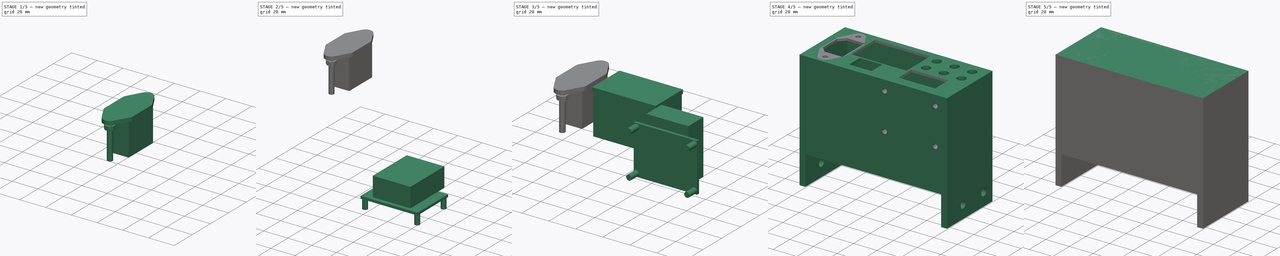
[diagram: build sequence overview — one tinted view per stage of 5, left to right]
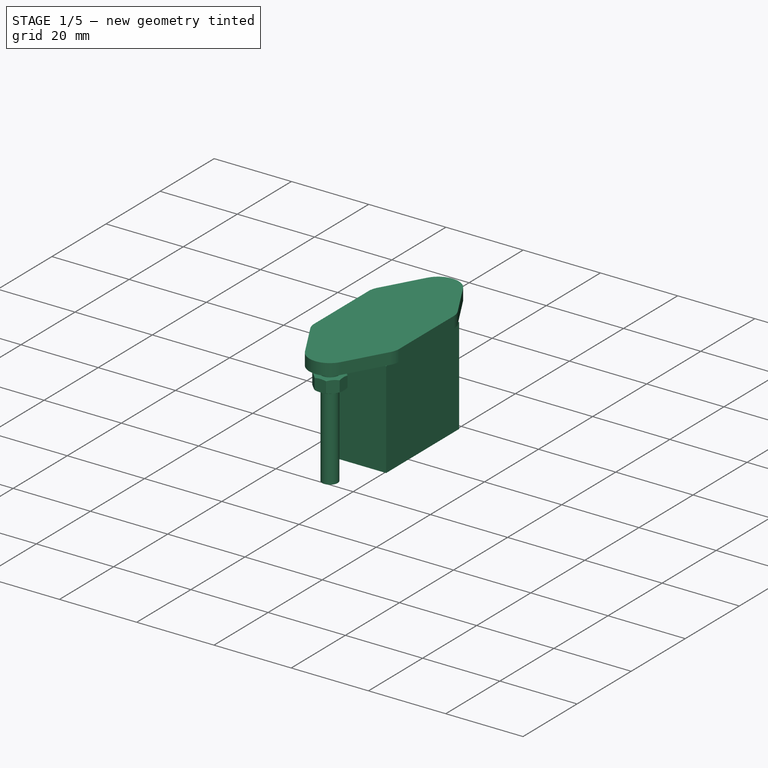
[diagram: stage 1 of 5 — iso view after this stage's code; geometry added in this stage tinted green]
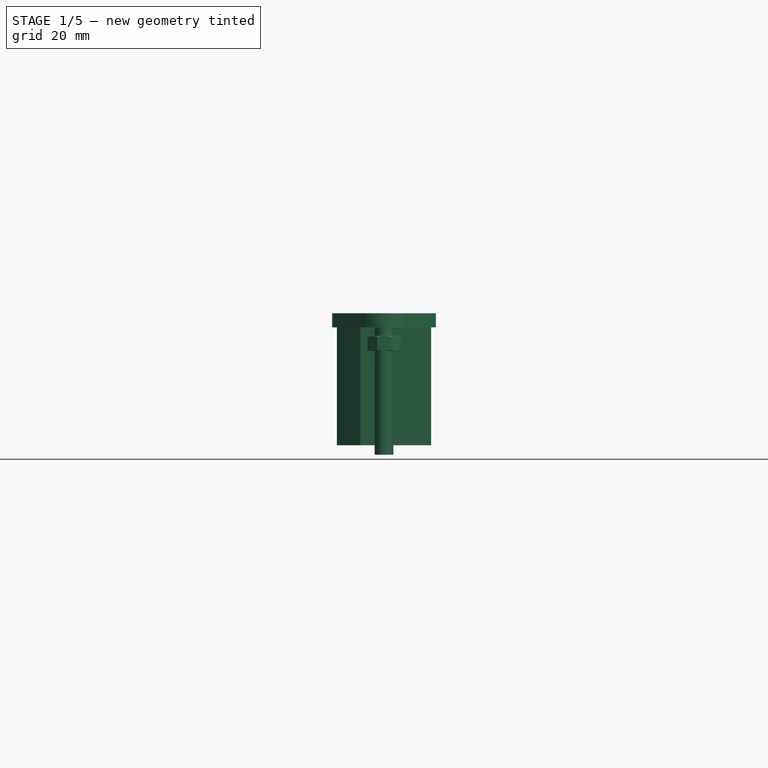
[diagram: stage 1 of 5 — front view after this stage's code; geometry added in this stage tinted green]
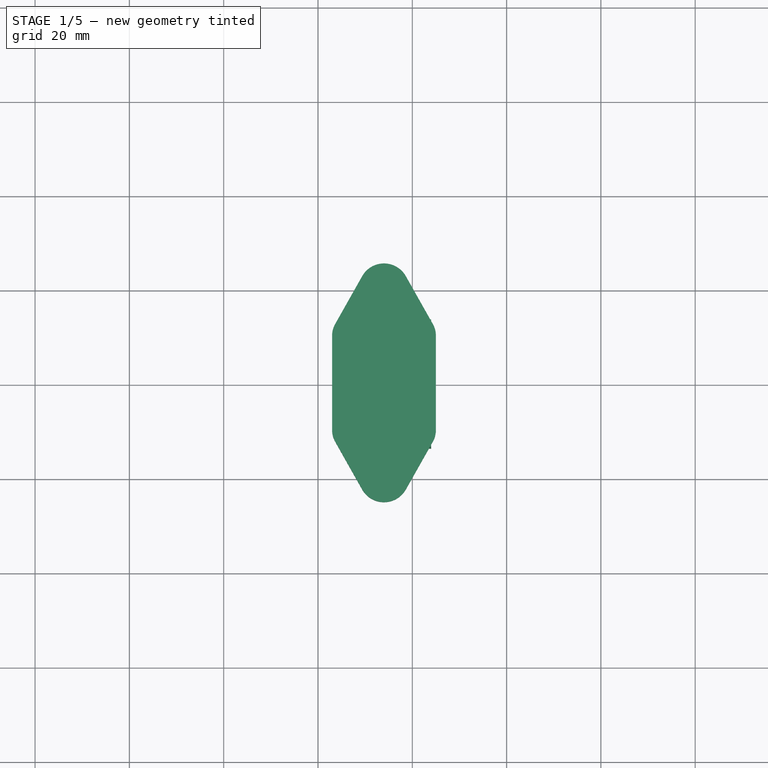
[diagram: stage 1 of 5 — top view after this stage's code; geometry added in this stage tinted green]
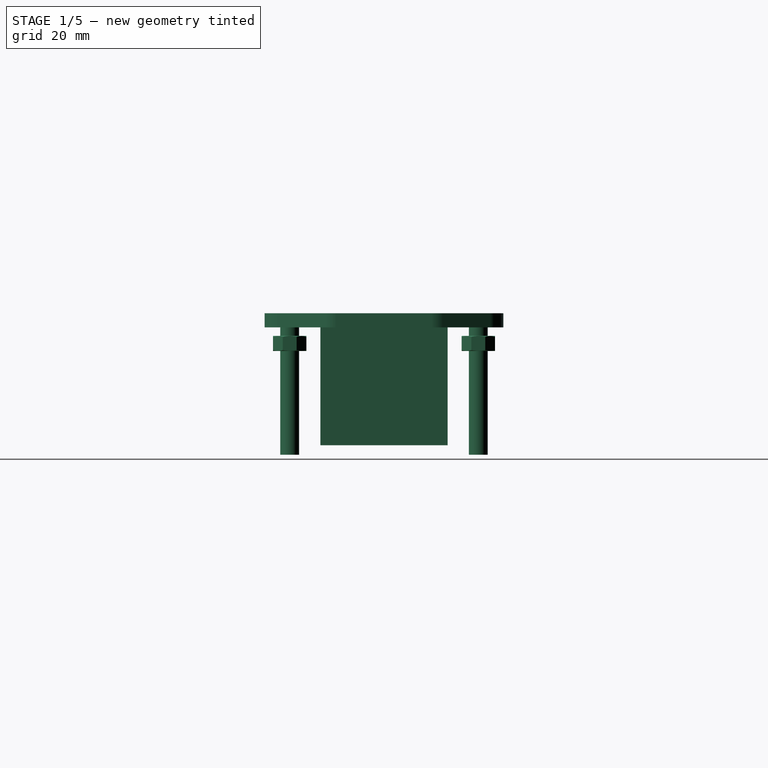
[diagram: stage 1 of 5 — right view after this stage's code; geometry added in this stage tinted green]
FCSTD DOCUMENT  (FreeCAD 0.16R)
Label: usbpower
License: All rights reserved
LicenseURL: http://en.wikipedia.org/wiki/All_rights_reserved
objects: Sketcher::SketchObject×13, PartDesign::Pad×9, Part::MultiFuse×4, PartDesign::Pocket×4, Part::Feature×2, Part::Cut×1
note: 46 computed .brp shape members not serialized (recipe doc carries the construction recipe); baked Part::Feature solids carry a one-line shape summary decoded from their .brp

FEATURE [Sketcher::SketchObject] Sketch003
  sketch-geometry (14):
    g0: LineSegment StartX=-10.2695 StartY=11 StartZ=0 EndX=10.2695 EndY=11 EndZ=0
    g1: LineSegment StartX=10.2695 StartY=-11 StartZ=0 EndX=-10.2695 EndY=-11 EndZ=0
    g2: ArcOfCircle CenterX=-10 CenterY=6.00727 CenterZ=0 NormalX=0 NormalY=0 NormalZ=1 Radius=5 StartAngle=1.62473 EndAngle=2.08479
    g3: ArcOfCircle CenterX=10 CenterY=6.00727 CenterZ=0 NormalX=0 NormalY=0 NormalZ=1 Radius=5 StartAngle=1.0568 EndAngle=1.51687
    g4: ArcOfCircle CenterX=-10 CenterY=-6.00727 CenterZ=0 NormalX=0 NormalY=0 NormalZ=1 Radius=5 StartAngle=4.1984 EndAngle=4.65846
    g5: ArcOfCircle CenterX=10 CenterY=-6.00727 CenterZ=0 NormalX=0 NormalY=0 NormalZ=1 Radius=5 StartAngle=4.76632 EndAngle=5.22638
    g6: Circle CenterX=-20 CenterY=0 CenterZ=0 NormalX=0 NormalY=0 NormalZ=1 Radius=2
    g7: Circle CenterX=20 CenterY=0 CenterZ=0 NormalX=0 NormalY=0 NormalZ=1 Radius=2
    g8: ArcOfCircle CenterX=-20 CenterY=0 CenterZ=0 NormalX=0 NormalY=0 NormalZ=1 Radius=5.31448 StartAngle=2.08479 EndAngle=4.1984
    g9: ArcOfCircle CenterX=20 CenterY=0 CenterZ=0 NormalX=0 NormalY=0 NormalZ=1 Radius=5.31448 StartAngle=5.22638 EndAngle=7.33999
    g10: LineSegment StartX=-22.6129 StartY=4.62779 StartZ=0 EndX=-12.4583 EndY=10.3612 EndZ=0
    g11: LineSegment StartX=22.6129 StartY=4.62779 StartZ=0 EndX=12.4583 EndY=10.3612 EndZ=0
    g12: LineSegment StartX=-22.6129 StartY=-4.62779 StartZ=0 EndX=-12.4583 EndY=-10.3612 EndZ=0
    g13: LineSegment StartX=12.4583 StartY=-10.3612 StartZ=0 EndX=22.6129 EndY=-4.62779 EndZ=0
  constraints (38):
    c: Symmetric(g0,g0,g-2)
    c: Symmetric(g0,g1,g-1)
    c: Equal(g0,g1)
    c: DistanceY(g1,g0) = 22
    c: Coincident(g2,g0)
    c: Coincident(g3,g0)
    c: Coincident(g4,g1)
    c: Coincident(g5,g1)
    c: Symmetric(g6,g7,g-2)
    c: Radius(g7) = 2
    c: Equal(g6,g7)
    c: DistanceX(g6,g7) = 40
    c: Coincident(g8,g6)
    c: Coincident(g9,g7)
    c: Symmetric(g8,g9,g-2)
    c: Symmetric(g8,g8,g-1)
    c: Symmetric(g9,g9,g-1)
    c: Coincident(g10,g8)
    c: Tangent(g10,g8)
    c: Tangent(g10,g2)
    c: Coincident(g11,g9)
    c: Tangent(g11,g9)
    c: Tangent(g11,g3)
    c: Coincident(g12,g8)
    c: Tangent(g8,g12)
    c: Tangent(g12,g4)
    c: Coincident(g13,g9)
    c: Tangent(g9,g13)
    c: Tangent(g13,g5)
    c: Symmetric(g2,g4,g-1)
    c: Symmetric(g3,g5,g-1)
    c: Symmetric(g2,g3,g-2)
    c: DistanceX(g2,g3) = 20
    c: Coincident(g2,g10)
    c: Coincident(g4,g12)
    c: Coincident(g5,g13)
    c: Coincident(g3,g11)
    c: Radius(g3) = 5
FEATURE [PartDesign::Pad] Pad003
  Length = 3
  Length2 = 100
  Sketch = -> Sketch003
  Type = 0
FEATURE [Sketcher::SketchObject] Sketch004
  sketch-geometry (6):
    g0: LineSegment StartX=-8.5 StartY=10 StartZ=0 EndX=8.5 EndY=10 EndZ=0
    g1: LineSegment StartX=8.5 StartY=10 StartZ=0 EndX=13.5 EndY=5 EndZ=0
    g2: LineSegment StartX=13.5 StartY=5 StartZ=0 EndX=13.5 EndY=-10 EndZ=0
    g3: LineSegment StartX=13.5 StartY=-10 StartZ=0 EndX=-13.5 EndY=-10 EndZ=0
    g4: LineSegment StartX=-13.5 StartY=-10 StartZ=0 EndX=-13.5 EndY=5 EndZ=0
    g5: LineSegment StartX=-13.5 StartY=5 StartZ=0 EndX=-8.5 EndY=10 EndZ=0
  constraints (17):
    c: Horizontal(g0)
    c: Coincident(g0,g1)
    c: Coincident(g1,g2)
    c: Coincident(g2,g3)
    c: Horizontal(g3)
    c: Coincident(g3,g4)
    c: Vertical(g4)
    c: Coincident(g4,g5)
    c: Coincident(g5,g0)
    c: Symmetric(g0,g0,g-2)
    c: Symmetric(g4,g1,g-2)
    c: Vertical(g2)
    c: DistanceY(g-1,g0) = 10
    c: DistanceY(g2,g-1) = 10
    c: DistanceX(g3,g2) = 27
    c: DistanceY(g2,g1) = 15
    c: Angle(g5,g-2) = 0.785398
FEATURE [PartDesign::Pad] Pad004
  Length = 25
  Length2 = 100
  Reversed = true
  Sketch = -> Sketch004
  Type = 0
FEATURE [Sketcher::SketchObject] Sketch005
  Placement = pos=(0,0,3) rot=(0,0,1;0rad)
  Support = -> Pad003 [Face16]
  sketch-geometry (2):
    g0: Circle CenterX=-20 CenterY=0 CenterZ=0 NormalX=0 NormalY=0 NormalZ=1 Radius=2
    g1: Circle CenterX=20 CenterY=0 CenterZ=0 NormalX=0 NormalY=0 NormalZ=1 Radius=2
  constraints (6):
    c: PointOnObject(g0,g-1)
    c: PointOnObject(g1,g-1)
    c: Symmetric(g0,g1,g-2)
    c: Radius(g1) = 2
    c: Equal(g0,g1)
    c: DistanceX(g0,g1) = 40
FEATURE [PartDesign::Pad] Pad005
  Length = 30
  Length2 = 100
  Reversed = true
  Sketch = -> Sketch005
  Type = 0
FEATURE [Part::Feature] Part__Feature  label="M4_1"
  Placement = pos=(-20,0,-5) rot=(0,0,1;0rad)
  shape: bbox 7.66 x 7.66 x 3.203 mm, 15 faces (baked)
FEATURE [Part::Feature] Part__Feature001  label="M4_2"
  Placement = pos=(20,0,-5) rot=(0,0,1;0rad)
  shape: bbox 7.66 x 7.66 x 3.203 mm, 15 faces (baked)
FEATURE [Part::MultiFuse] Fusion004  label="C14"
  Placement = pos=(-46,0,100) rot=(0,0,1;1.5708rad)
  Shapes = -> [Pad003,Pad005,Pad004,Part__Feature,Part__Feature001]
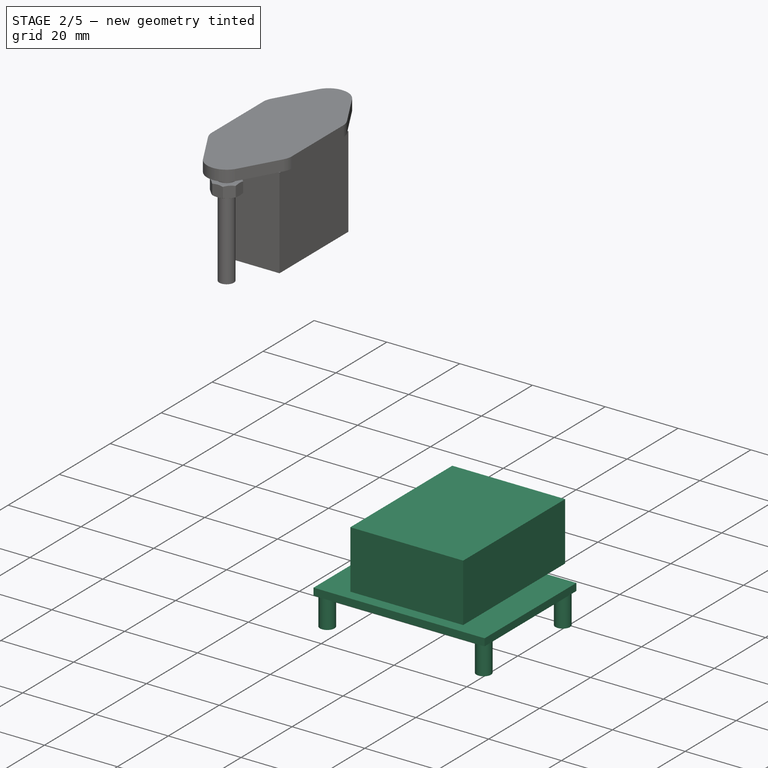
[diagram: stage 2 of 5 — iso view after this stage's code; geometry added in this stage tinted green]
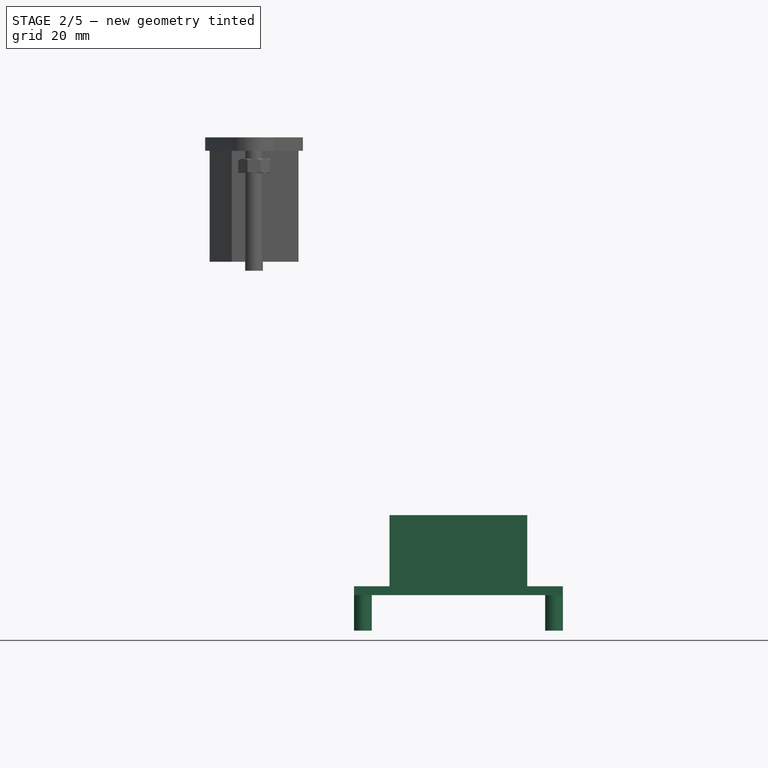
[diagram: stage 2 of 5 — front view after this stage's code; geometry added in this stage tinted green]
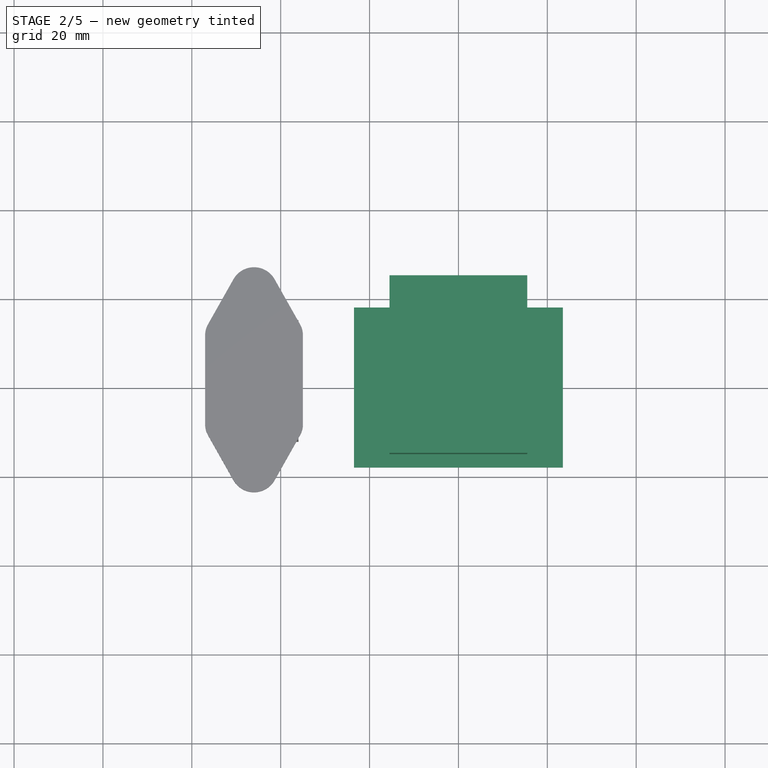
[diagram: stage 2 of 5 — top view after this stage's code; geometry added in this stage tinted green]
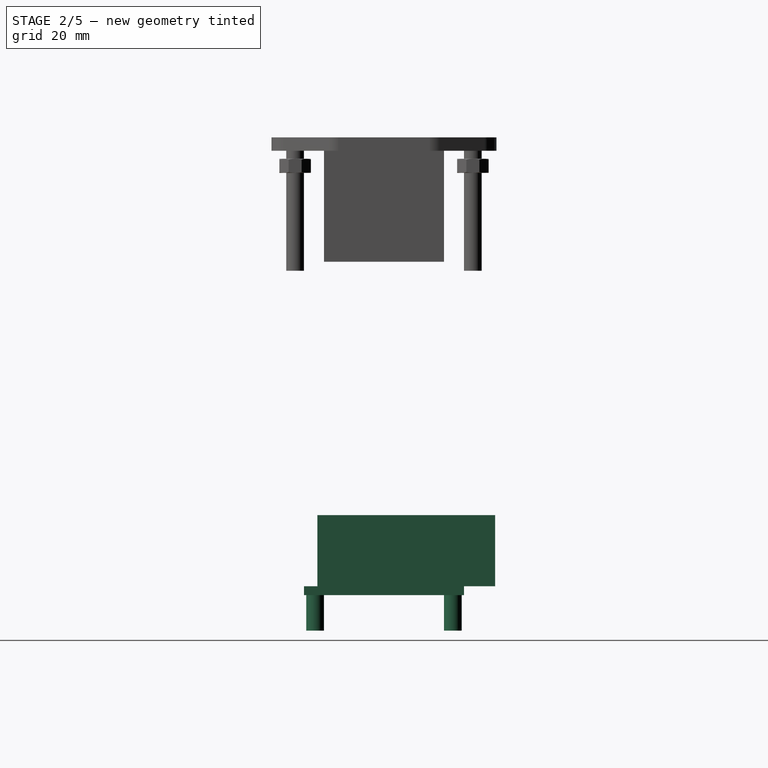
[diagram: stage 2 of 5 — right view after this stage's code; geometry added in this stage tinted green]
FEATURE [Sketcher::SketchObject] Sketch
  sketch-geometry (4):
    g0: LineSegment StartX=-23.5 StartY=18 StartZ=0 EndX=23.5 EndY=18 EndZ=0
    g1: LineSegment StartX=23.5 StartY=18 StartZ=0 EndX=23.5 EndY=-18 EndZ=0
    g2: LineSegment StartX=23.5 StartY=-18 StartZ=0 EndX=-23.5 EndY=-18 EndZ=0
    g3: LineSegment StartX=-23.5 StartY=-18 StartZ=0 EndX=-23.5 EndY=18 EndZ=0
  constraints (12):
    c: Coincident(g0,g1)
    c: Coincident(g1,g2)
    c: Coincident(g2,g3)
    c: Coincident(g3,g0)
    c: Horizontal(g0)
    c: Horizontal(g2)
    c: Vertical(g1)
    c: Vertical(g3)
    c: Symmetric(g0,g0,g-2)
    c: Symmetric(g1,g0,g-1)
    c: DistanceX(g0,g0) = 47
    c: DistanceY(g1,g1) = 36
FEATURE [PartDesign::Pad] Pad
  Length = 2
  Length2 = 100
  Sketch = -> Sketch
  Type = 0
FEATURE [Sketcher::SketchObject] Sketch001
  Placement = pos=(0,0,2) rot=(0,0,1;0rad)
  Support = -> Pad [Face6]
  sketch-geometry (4):
    g0: LineSegment StartX=-15.5 StartY=25 StartZ=0 EndX=15.5 EndY=25 EndZ=0
    g1: LineSegment StartX=15.5 StartY=25 StartZ=0 EndX=15.5 EndY=-15 EndZ=0
    g2: LineSegment StartX=15.5 StartY=-15 StartZ=0 EndX=-15.5 EndY=-15 EndZ=0
    g3: LineSegment StartX=-15.5 StartY=-15 StartZ=0 EndX=-15.5 EndY=25 EndZ=0
  constraints (12):
    c: Coincident(g0,g1)
    c: Coincident(g1,g2)
    c: Coincident(g2,g3)
    c: Coincident(g3,g0)
    c: Horizontal(g0)
    c: Horizontal(g2)
    c: Vertical(g1)
    c: Vertical(g3)
    c: Symmetric(g0,g0,g-2)
    c: DistanceY(g1,g1) = 40
    c: DistanceX(g0,g0) = 31
    c: DistanceY(g-1,g0) = 25
FEATURE [PartDesign::Pad] Pad001
  Length = 16
  Length2 = 100
  Sketch = -> Sketch001
  Type = 0
FEATURE [Sketcher::SketchObject] Sketch002
  Placement = pos=(0,0,2) rot=(0,0,1;0rad)
  Support = -> Pad [Face6]
  sketch-geometry (4):
    g0: Circle CenterX=-21.5 CenterY=15.5 CenterZ=0 NormalX=0 NormalY=0 NormalZ=1 Radius=2
    g1: Circle CenterX=21.5 CenterY=15.5 CenterZ=0 NormalX=0 NormalY=0 NormalZ=1 Radius=2
    g2: Circle CenterX=-21.5 CenterY=-15.5 CenterZ=0 NormalX=0 NormalY=0 NormalZ=1 Radius=2
    g3: Circle CenterX=21.5 CenterY=-15.5 CenterZ=0 NormalX=0 NormalY=0 NormalZ=1 Radius=2
  constraints (9):
    c: Radius(g0) = 2
    c: Equal(g0,g1)
    c: Equal(g0,g2)
    c: Equal(g0,g3)
    c: Symmetric(g0,g1,g-2)
    c: Symmetric(g2,g3,g-2)
    c: Symmetric(g1,g3,g-1)
    c: DistanceY(g3,g1) = 31
    c: DistanceX(g2,g3) = 43
FEATURE [PartDesign::Pad] Pad002
  Length = 10
  Length2 = 100
  Reversed = true
  Sketch = -> Sketch002
  Type = 0
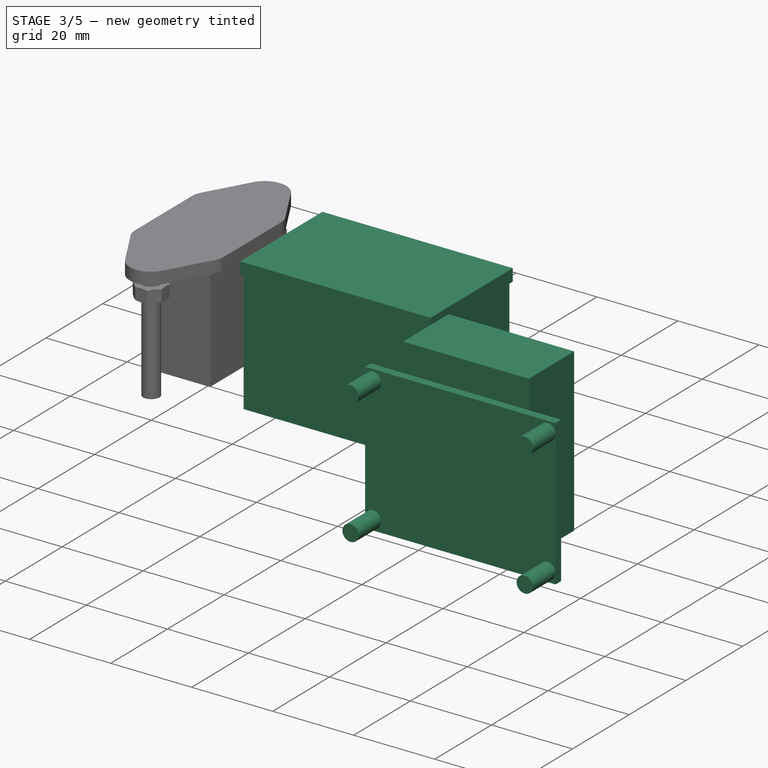
[diagram: stage 3 of 5 — iso view after this stage's code; geometry added in this stage tinted green]
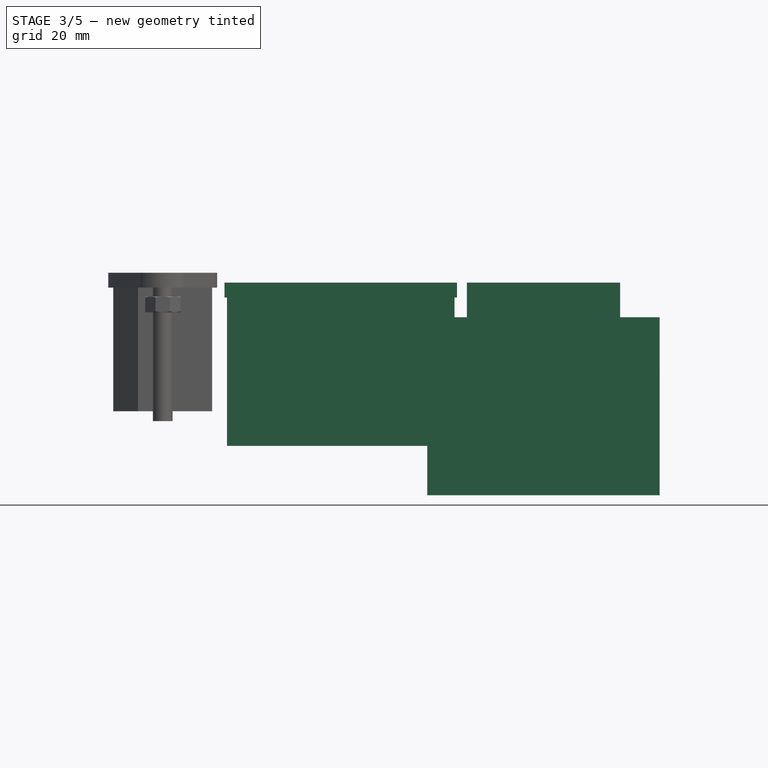
[diagram: stage 3 of 5 — front view after this stage's code; geometry added in this stage tinted green]
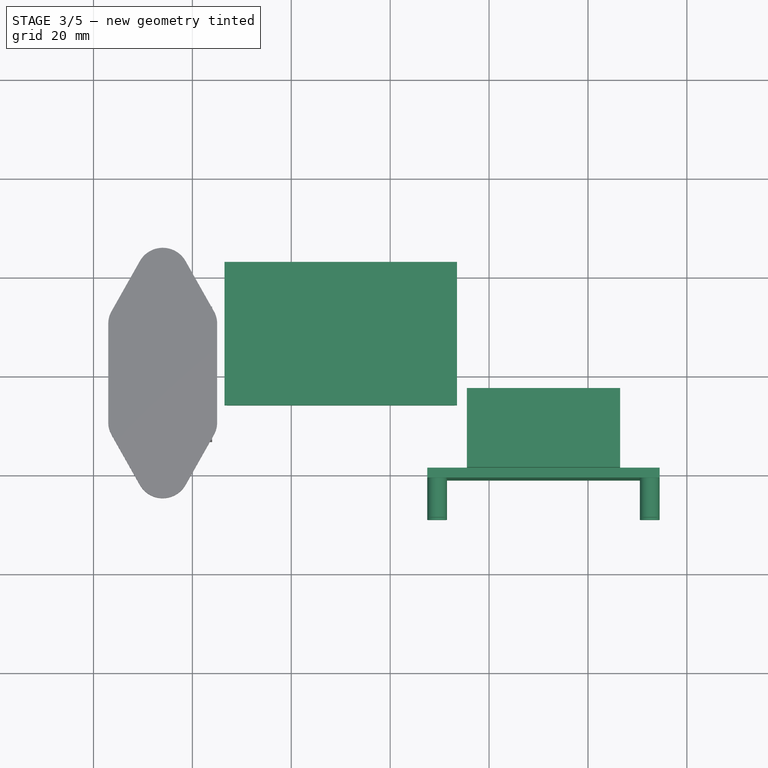
[diagram: stage 3 of 5 — top view after this stage's code; geometry added in this stage tinted green]
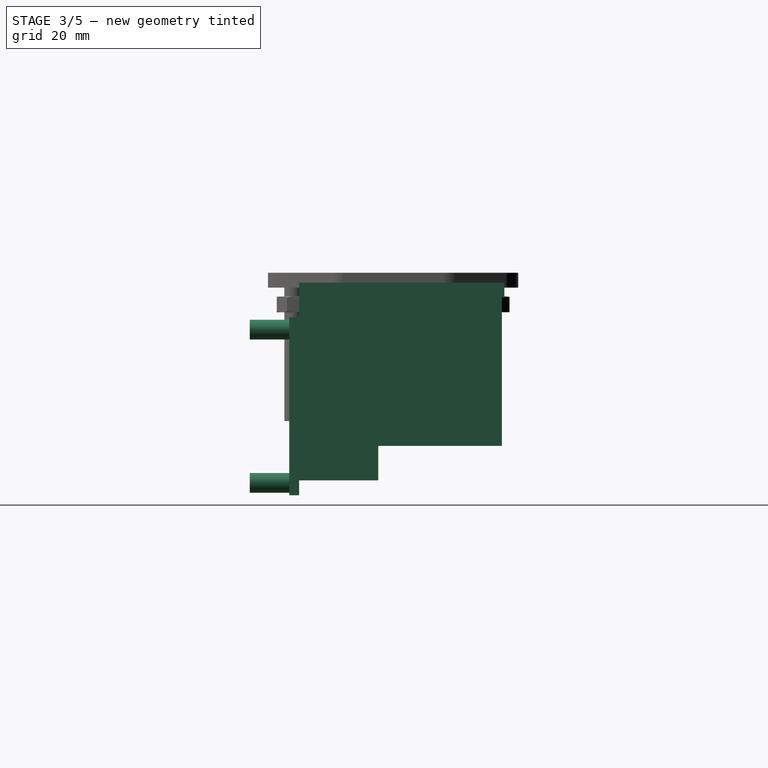
[diagram: stage 3 of 5 — right view after this stage's code; geometry added in this stage tinted green]
FEATURE [Sketcher::SketchObject] Sketch006
  sketch-geometry (4):
    g0: LineSegment StartX=-23.5 StartY=14.5 StartZ=0 EndX=23.5 EndY=14.5 EndZ=0
    g1: LineSegment StartX=23.5 StartY=14.5 StartZ=0 EndX=23.5 EndY=-14.5 EndZ=0
    g2: LineSegment StartX=23.5 StartY=-14.5 StartZ=0 EndX=-23.5 EndY=-14.5 EndZ=0
    g3: LineSegment StartX=-23.5 StartY=-14.5 StartZ=0 EndX=-23.5 EndY=14.5 EndZ=0
  constraints (12):
    c: Coincident(g0,g1)
    c: Coincident(g1,g2)
    c: Coincident(g2,g3)
    c: Coincident(g3,g0)
    c: Horizontal(g0)
    c: Horizontal(g2)
    c: Vertical(g1)
    c: Vertical(g3)
    c: Symmetric(g0,g0,g-2)
    c: Symmetric(g0,g1,g-1)
    c: DistanceX(g0,g0) = 47
    c: DistanceY(g1,g1) = 29
FEATURE [PartDesign::Pad] Pad006
  Length = 3
  Length2 = 100
  Sketch = -> Sketch006
  Type = 0
FEATURE [Sketcher::SketchObject] Sketch007
  Placement = pos=(0,0,3) rot=(0,0,1;0rad)
  Support = -> Pad006 [Face6]
  sketch-geometry (4):
    g0: LineSegment StartX=-23 StartY=14 StartZ=0 EndX=23 EndY=14 EndZ=0
    g1: LineSegment StartX=23 StartY=14 StartZ=0 EndX=23 EndY=-14 EndZ=0
    g2: LineSegment StartX=23 StartY=-14 StartZ=0 EndX=-23 EndY=-14 EndZ=0
    g3: LineSegment StartX=-23 StartY=-14 StartZ=0 EndX=-23 EndY=14 EndZ=0
  constraints (12):
    c: Coincident(g0,g1)
    c: Coincident(g1,g2)
    c: Coincident(g2,g3)
    c: Coincident(g3,g0)
    c: Horizontal(g0)
    c: Horizontal(g2)
    c: Vertical(g1)
    c: Vertical(g3)
    c: Symmetric(g0,g0,g-2)
    c: Symmetric(g0,g1,g-1)
    c: DistanceX(g0,g0) = 46
    c: DistanceY(g1,g1) = 28
FEATURE [PartDesign::Pad] Pad007
  Length = 30
  Length2 = 100
  Sketch = -> Sketch007
  Type = 0
FEATURE [Part::MultiFuse] Fusion002  label="AMPMETER"
  Placement = pos=(-10,8,101) rot=(1,0,0;3.14159rad)
  Shapes = -> [Pad006,Pad007]
FEATURE [Part::MultiFuse] Fusion003  label="USBPOWER"
  Placement = pos=(31,-21,76) rot=(0,0.707107,0.707107;3.14159rad)
  Shapes = -> [Pad001,Pad002]
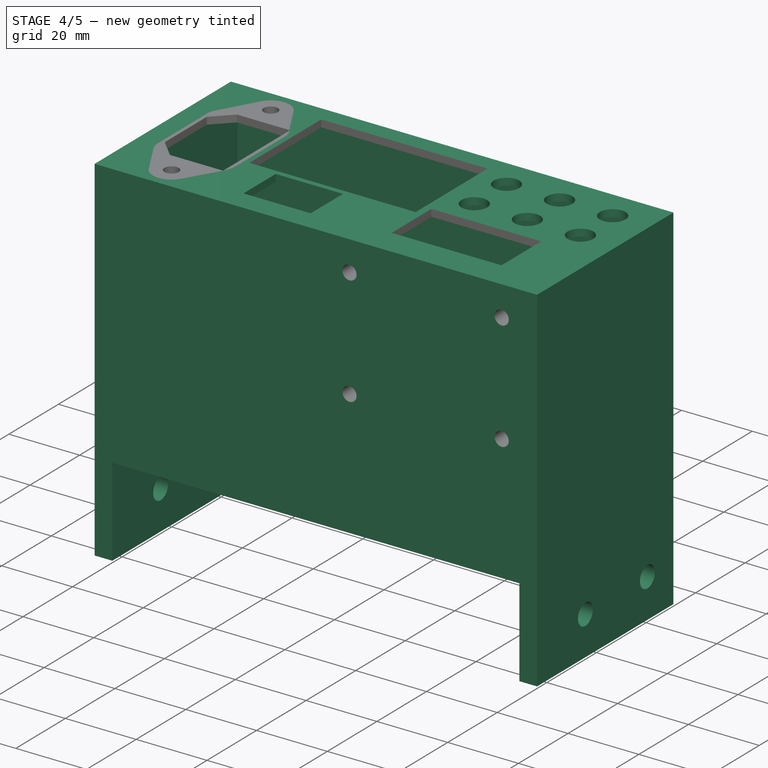
[diagram: stage 4 of 5 — iso view after this stage's code; geometry added in this stage tinted green]
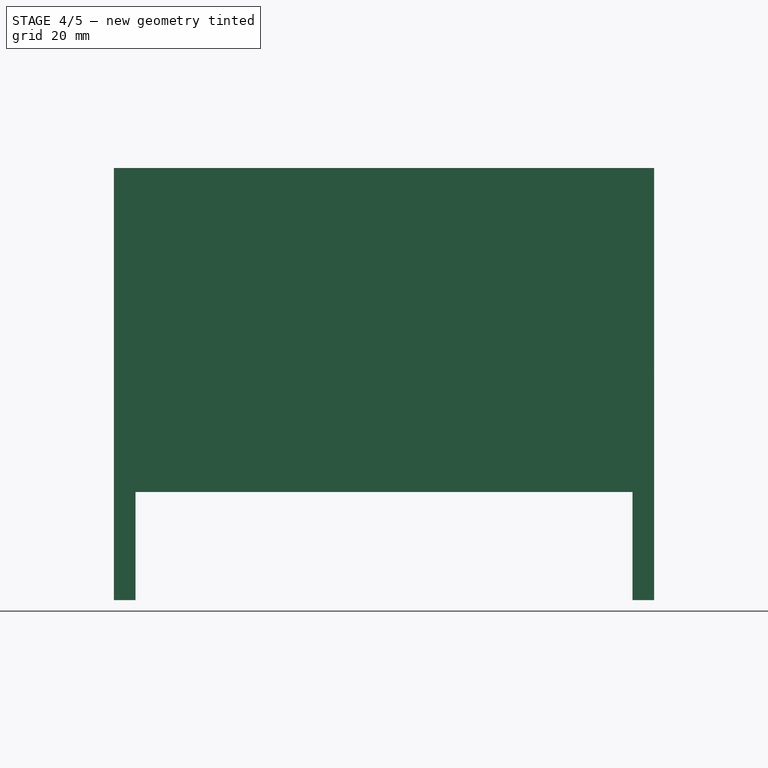
[diagram: stage 4 of 5 — front view after this stage's code; geometry added in this stage tinted green]
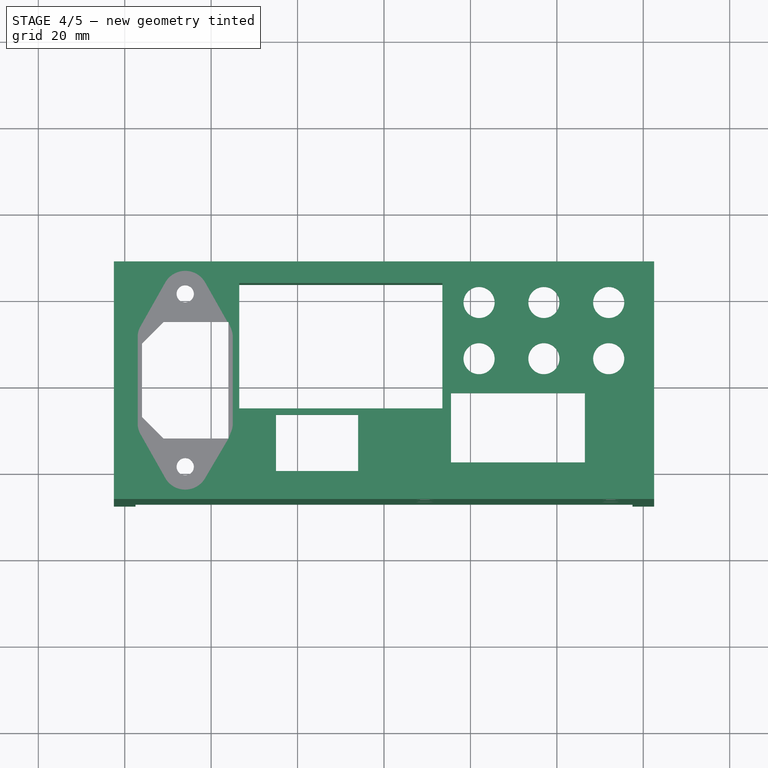
[diagram: stage 4 of 5 — top view after this stage's code; geometry added in this stage tinted green]
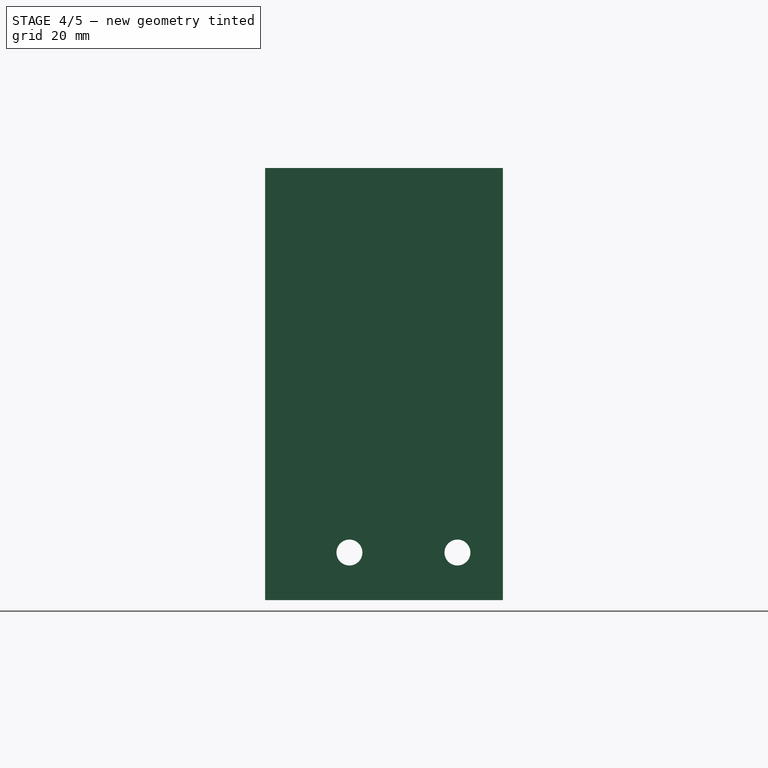
[diagram: stage 4 of 5 — right view after this stage's code; geometry added in this stage tinted green]
FEATURE [Part::MultiFuse] Fusion
  Shapes = -> [Fusion003,Fusion002,Fusion004]
FEATURE [Part::Cut] Cut
  Tool = -> Fusion
FEATURE [Sketcher::SketchObject] Sketch014
  Placement = pos=(0,0,100) rot=(0,0,1;0rad)
  Support = -> Cut [Face10]
  sketch-geometry (15):
    g0: LineSegment StartX=-25 StartY=-8 StartZ=0 EndX=-6 EndY=-8 EndZ=0
    g1: LineSegment StartX=-6 StartY=-8 StartZ=0 EndX=-6 EndY=-21 EndZ=0
    g2: LineSegment StartX=-6 StartY=-21 StartZ=0 EndX=-25 EndY=-21 EndZ=0
    g3: LineSegment StartX=-25 StartY=-21 StartZ=0 EndX=-25 EndY=-8 EndZ=0
    g4: Circle CenterX=22 CenterY=18 CenterZ=0 NormalX=0 NormalY=0 NormalZ=1 Radius=3.6
    g5: Circle CenterX=37 CenterY=18 CenterZ=0 NormalX=0 NormalY=0 NormalZ=1 Radius=3.6
    g6: Circle CenterX=22 CenterY=5 CenterZ=0 NormalX=0 NormalY=0 NormalZ=1 Radius=3.6
    g7: Circle CenterX=37 CenterY=5 CenterZ=0 NormalX=0 NormalY=0 NormalZ=1 Radius=3.6
    g8: Circle CenterX=52 CenterY=5 CenterZ=0 NormalX=0 NormalY=0 NormalZ=1 Radius=3.6
    g9: Circle CenterX=52 CenterY=18 CenterZ=0 NormalX=0 NormalY=0 NormalZ=1 Radius=3.6
    g10: LineSegment [constr] StartX=22 StartY=18 StartZ=0 EndX=37 EndY=18 EndZ=0
    g11: LineSegment [constr] StartX=37 StartY=18 StartZ=0 EndX=52 EndY=18 EndZ=0
    g12: LineSegment [constr] StartX=22 StartY=18 StartZ=0 EndX=22 EndY=5 EndZ=0
    g13: LineSegment [constr] StartX=37 StartY=18 StartZ=0 EndX=37 EndY=5 EndZ=0
    g14: LineSegment [constr] StartX=52 StartY=18 StartZ=0 EndX=52 EndY=5 EndZ=0
  constraints (40):
    c: Coincident(g0,g1)
    c: Coincident(g1,g2)
    c: Coincident(g2,g3)
    c: Coincident(g3,g0)
    c: Horizontal(g0)
    c: Horizontal(g2)
    c: Vertical(g1)
    c: Vertical(g3)
    c: DistanceX(g0,g0) = 19
    c: DistanceY(g3,g3) = 13
    c: DistanceX(g0,g-1) = 6
    c: DistanceY(g0,g-1) = 8
    c: Radius(g4) = 3.6
    c: Equal(g4,g5)
    c: Equal(g5,g9)
    c: Equal(g9,g6)
    c: Equal(g6,g7)
    c: Equal(g7,g8)
    c: Coincident(g10,g4)
    c: Coincident(g10,g5)
    c: Coincident(g11,g5)
    c: Coincident(g11,g9)
    c: Horizontal(g11)
    c: Coincident(g12,g4)
    c: Coincident(g12,g6)
    c: Vertical(g12)
    c: Coincident(g13,g5)
    c: Coincident(g13,g7)
    c: Coincident(g14,g9)
    c: Coincident(g14,g8)
    c: Horizontal(g10)
    c: Vertical(g13)
    c: Vertical(g14)
    c: Equal(g10,g11)
    c: Equal(g12,g13)
    c: Equal(g13,g14)
    c: DistanceX(g10,g10) = 15
    c: DistanceY(g12,g12) = 13
    c: DistanceX(g-1,g6) = 22
    c: DistanceY(g-1,g6) = 5
FEATURE [PartDesign::Pocket] Pocket004
  Length = 5
  Sketch = -> Sketch014
  Type = 0
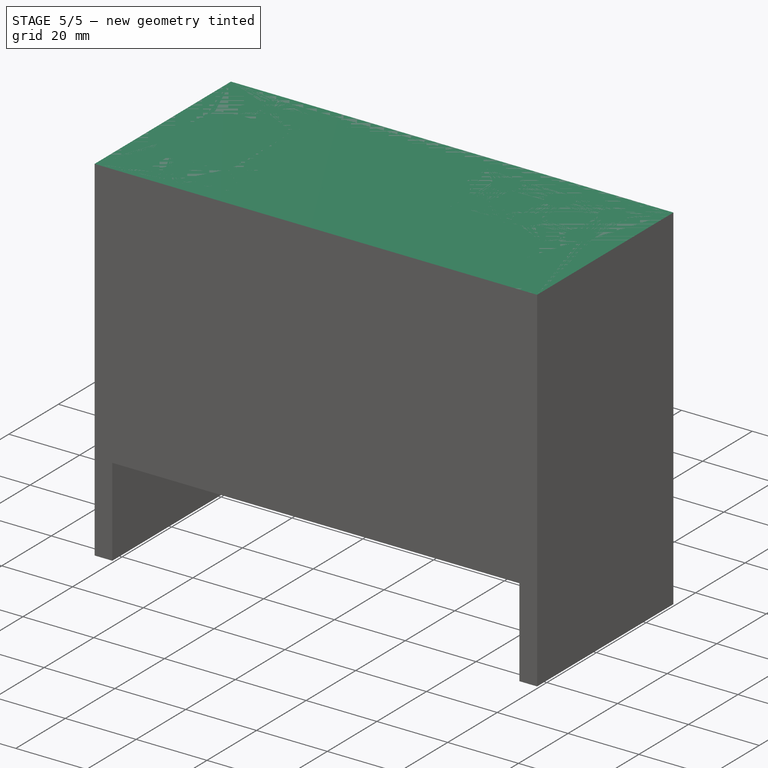
[diagram: stage 5 of 5 — iso view after this stage's code; geometry added in this stage tinted green]
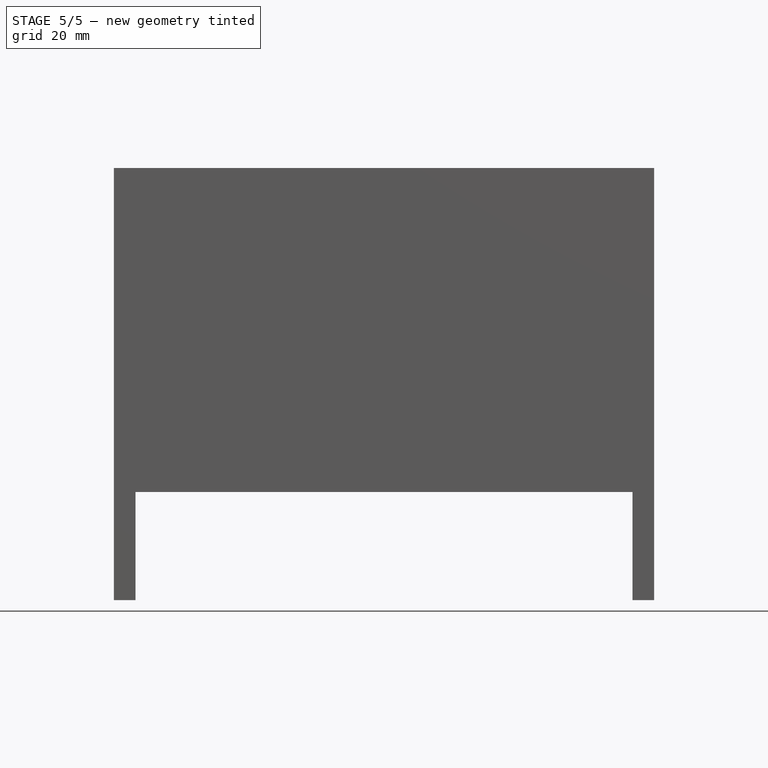
[diagram: stage 5 of 5 — front view after this stage's code; geometry added in this stage tinted green]
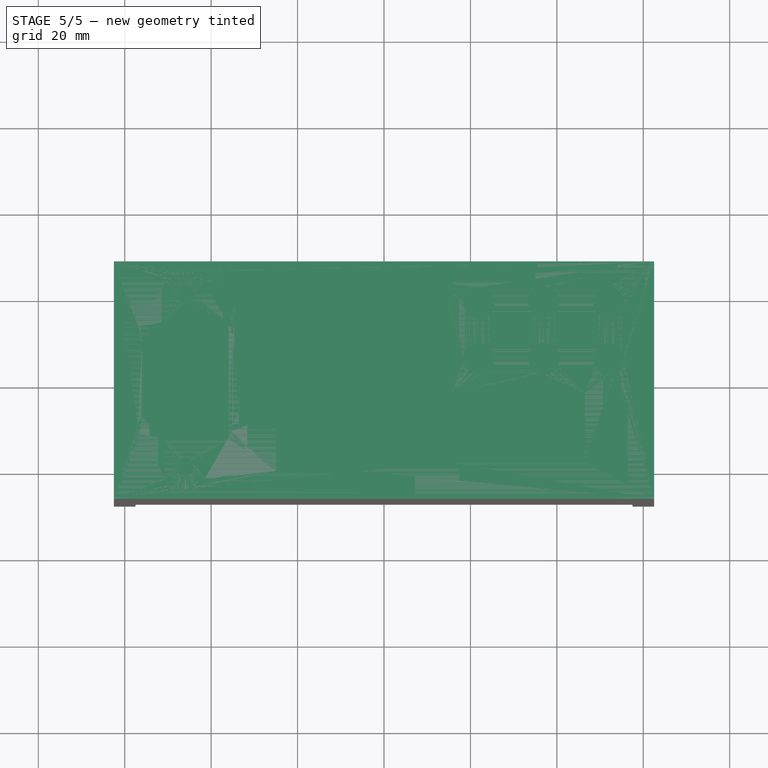
[diagram: stage 5 of 5 — top view after this stage's code; geometry added in this stage tinted green]
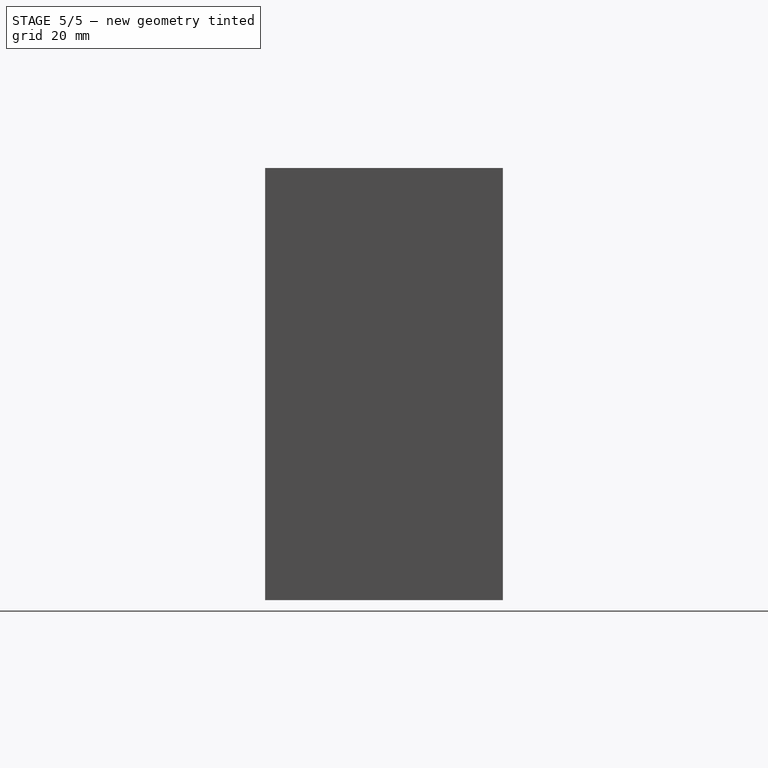
[diagram: stage 5 of 5 — right view after this stage's code; geometry added in this stage tinted green]
FEATURE [Sketcher::SketchObject] Sketch008
  sketch-geometry (4):
    g0: LineSegment StartX=-62.5 StartY=27.5 StartZ=0 EndX=62.5 EndY=27.5 EndZ=0
    g1: LineSegment StartX=62.5 StartY=27.5 StartZ=0 EndX=62.5 EndY=-27.5 EndZ=0
    g2: LineSegment StartX=62.5 StartY=-27.5 StartZ=0 EndX=-62.5 EndY=-27.5 EndZ=0
    g3: LineSegment StartX=-62.5 StartY=-27.5 StartZ=0 EndX=-62.5 EndY=27.5 EndZ=0
  constraints (12):
    c: Coincident(g0,g1)
    c: Coincident(g1,g2)
    c: Coincident(g2,g3)
    c: Coincident(g3,g0)
    c: Horizontal(g0)
    c: Horizontal(g2)
    c: Vertical(g1)
    c: Vertical(g3)
    c: Symmetric(g0,g0,g-2)
    c: Symmetric(g0,g1,g-1)
    c: DistanceX(g0,g0) = 125
    c: DistanceY(g1,g1) = 55
FEATURE [PartDesign::Pad] Pad008
  Length = 100
  Length2 = 80
  Sketch = -> Sketch008
  Type = 0
FEATURE [Sketcher::SketchObject] Sketch010
  Placement = pos=(0,27.5,0) rot=(0,0.707107,0.707107;3.14159rad)
  Support = -> Pad008 [Face1]
  sketch-geometry (4):
    g0: LineSegment StartX=-57.5 StartY=25 StartZ=0 EndX=57.5 EndY=25 EndZ=0
    g1: LineSegment StartX=57.5 StartY=25 StartZ=0 EndX=57.5 EndY=0 EndZ=0
    g2: LineSegment StartX=57.5 StartY=0 StartZ=0 EndX=-57.5 EndY=0 EndZ=0
    g3: LineSegment StartX=-57.5 StartY=0 StartZ=0 EndX=-57.5 EndY=25 EndZ=0
  constraints (12):
    c: Coincident(g0,g1)
    c: Coincident(g1,g2)
    c: Coincident(g2,g3)
    c: Coincident(g3,g0)
    c: Horizontal(g0)
    c: Horizontal(g2)
    c: Vertical(g1)
    c: Vertical(g3)
    c: PointOnObject(g1,g-1)
    c: Symmetric(g0,g0,g-2)
    c: DistanceX(g0,g0) = 115
    c: DistanceY(g1,g1) = 25
FEATURE [PartDesign::Pocket] Pocket
  Length = 60
  Sketch = -> Sketch010
  Type = 0
FEATURE [Sketcher::SketchObject] Sketch011
  Placement = pos=(0,27.5,0) rot=(0,0.707107,0.707107;3.14159rad)
  Support = -> Pocket [Face1]
  sketch-geometry (4):
    g0: LineSegment StartX=-57.5 StartY=45 StartZ=0 EndX=57.5 EndY=45 EndZ=0
    g1: LineSegment StartX=57.5 StartY=45 StartZ=0 EndX=57.5 EndY=25 EndZ=0
    g2: LineSegment StartX=57.5 StartY=25 StartZ=0 EndX=-57.5 EndY=25 EndZ=0
    g3: LineSegment StartX=-57.5 StartY=25 StartZ=0 EndX=-57.5 EndY=45 EndZ=0
  constraints (12):
    c: Coincident(g0,g1)
    c: Coincident(g1,g2)
    c: Coincident(g2,g3)
    c: Coincident(g3,g0)
    c: Horizontal(g0)
    c: Horizontal(g2)
    c: Vertical(g1)
    c: Vertical(g3)
    c: Symmetric(g0,g0,g-2)
    c: DistanceX(g0,g0) = 115
    c: DistanceY(g1,g1) = 20
    c: DistanceY(g-1,g1) = 25
FEATURE [PartDesign::Pocket] Pocket001
  Length = 50
  Sketch = -> Sketch011
  Type = 0
FEATURE [Sketcher::SketchObject] Sketch012
  Placement = pos=(0,0,45) rot=(1,0,0;3.14159rad)
  Support = -> Pocket001 [Face5]
  sketch-geometry (4):
    g0: LineSegment StartX=-57.5 StartY=23 StartZ=0 EndX=57.5 EndY=23 EndZ=0
    g1: LineSegment StartX=57.5 StartY=23 StartZ=0 EndX=57.5 EndY=-23 EndZ=0
    g2: LineSegment StartX=57.5 StartY=-23 StartZ=0 EndX=-57.5 EndY=-23 EndZ=0
    g3: LineSegment StartX=-57.5 StartY=-23 StartZ=0 EndX=-57.5 EndY=23 EndZ=0
  constraints (12):
    c: Coincident(g0,g1)
    c: Coincident(g1,g2)
    c: Coincident(g2,g3)
    c: Coincident(g3,g0)
    c: Horizontal(g0)
    c: Horizontal(g2)
    c: Vertical(g1)
    c: Vertical(g3)
    c: Symmetric(g0,g0,g-2)
    c: DistanceX(g0,g0) = 115
    c: DistanceY(g1,g1) = 46
    c: Symmetric(g0,g2,g-1)
FEATURE [PartDesign::Pocket] Pocket002  label="case"
  Length = 53
  Sketch = -> Sketch012
  Type = 0
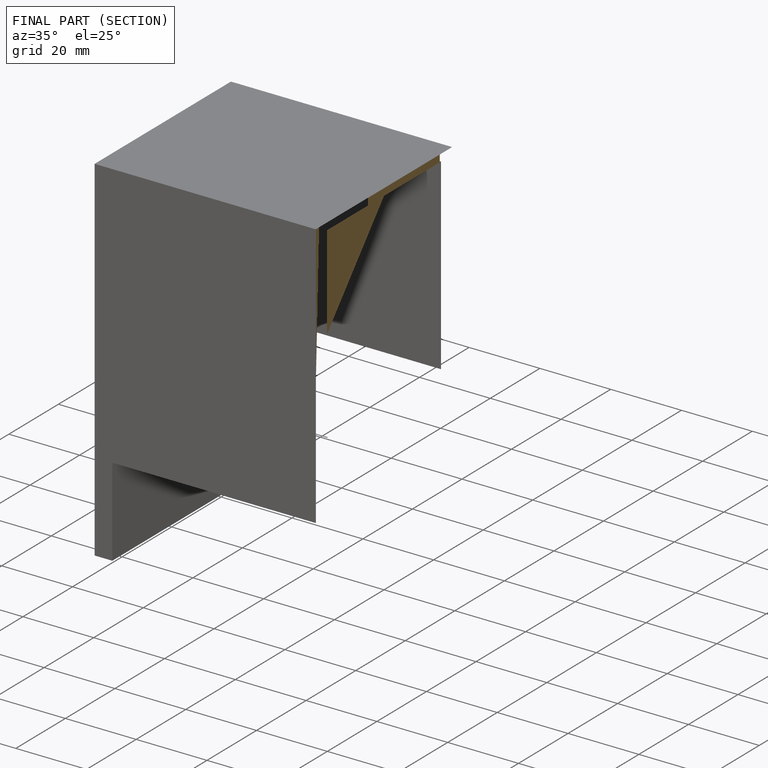
[diagram: finished part — half-section view (interior)]
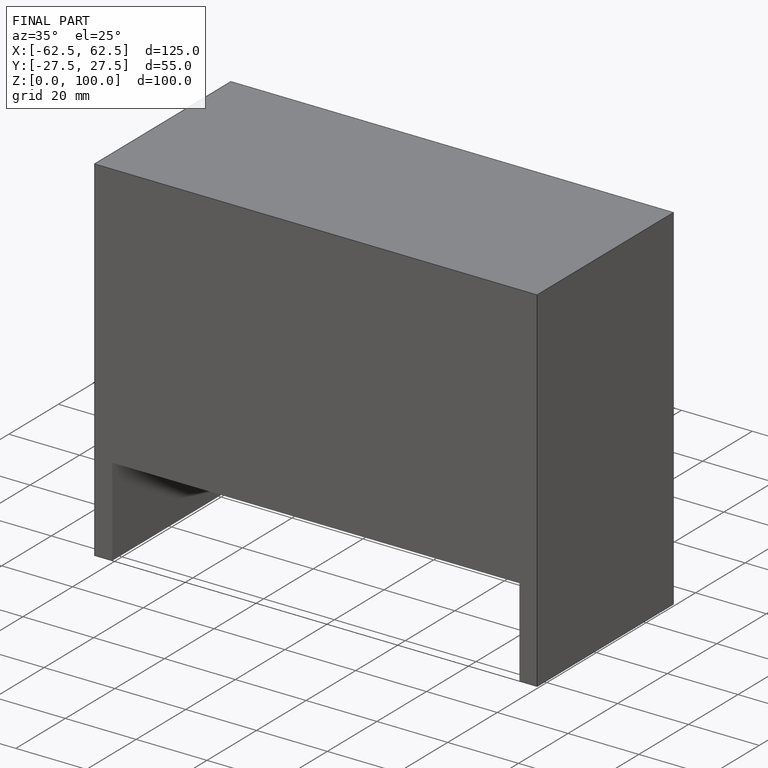
[diagram: finished part — iso view with bounding-box wireframe]
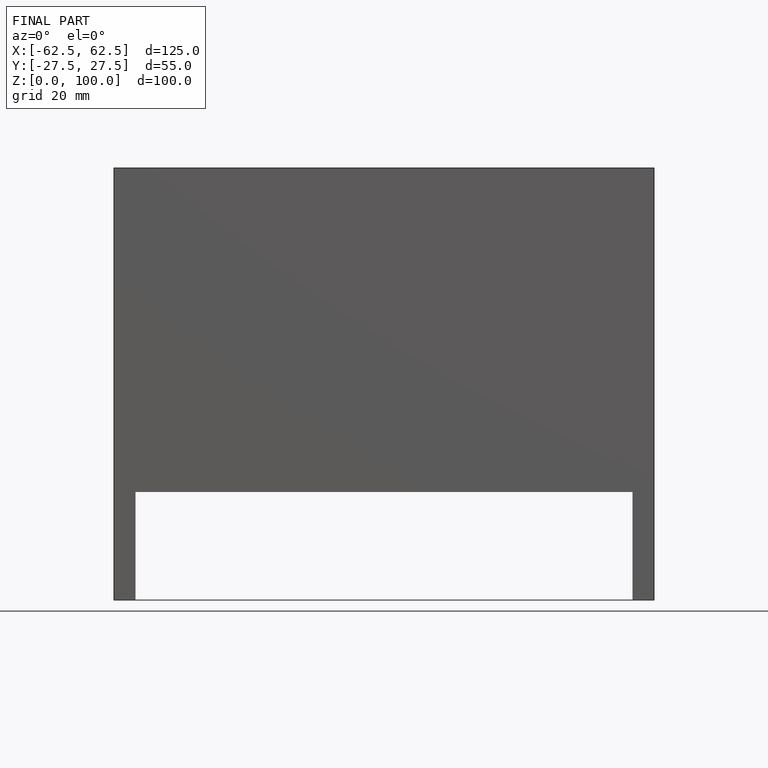
[diagram: finished part — front view with bounding-box wireframe]
